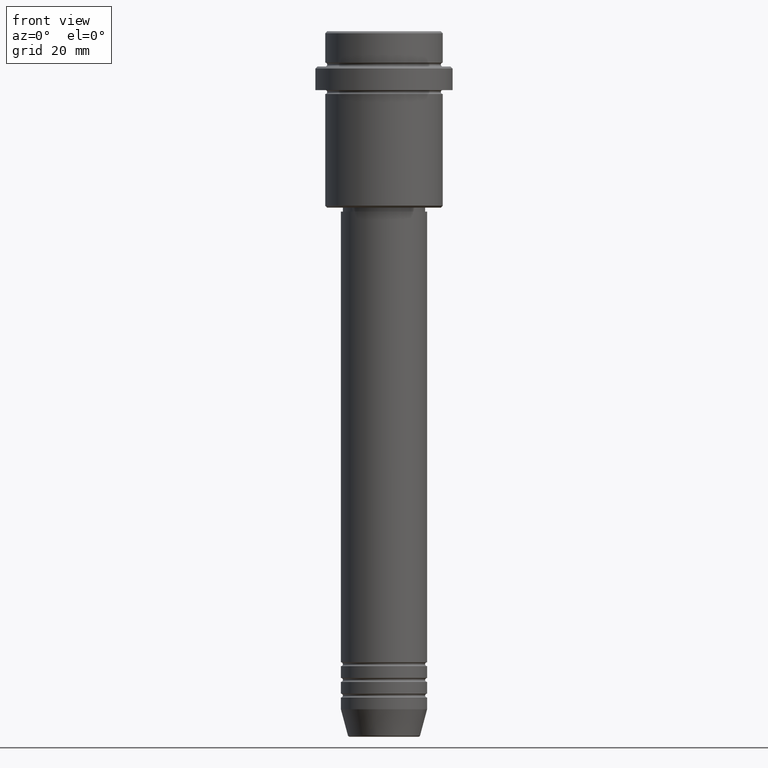
[diagram: clean part render]
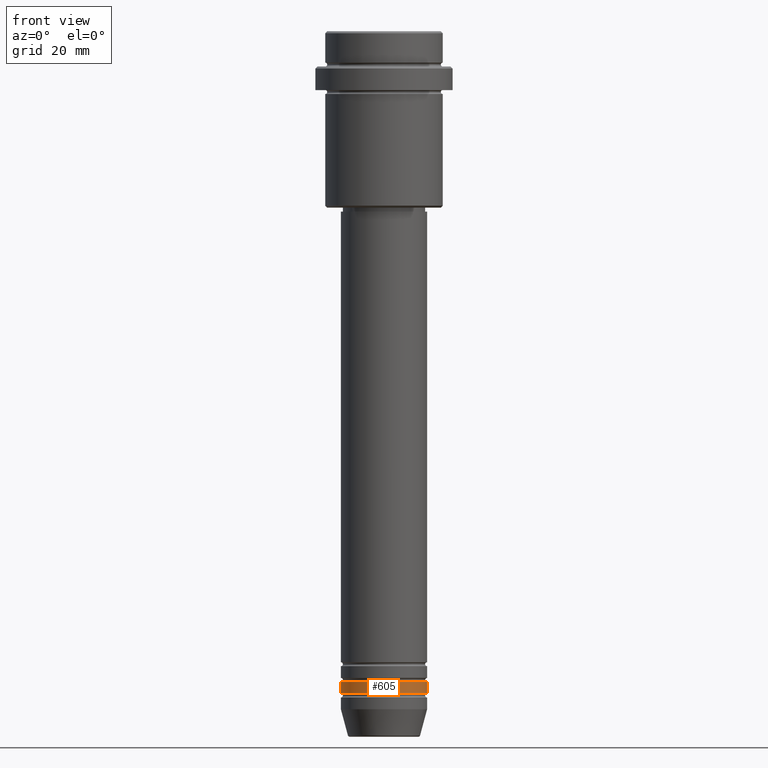
[diagram: same view with one face highlighted and labeled with its STEP entity id]
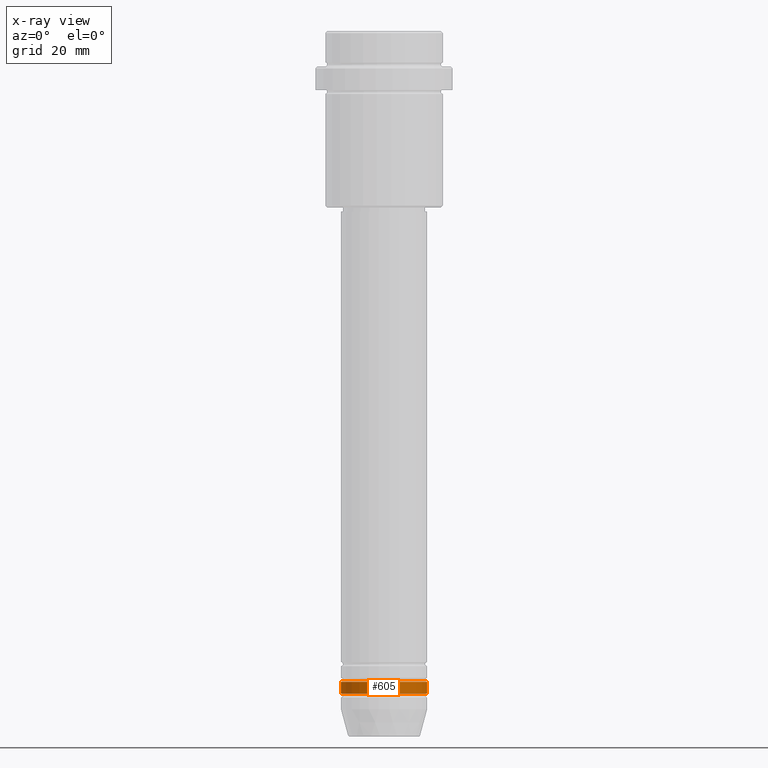
[diagram: x-ray of the same camera — body ghosted, the highlighted face saturated]
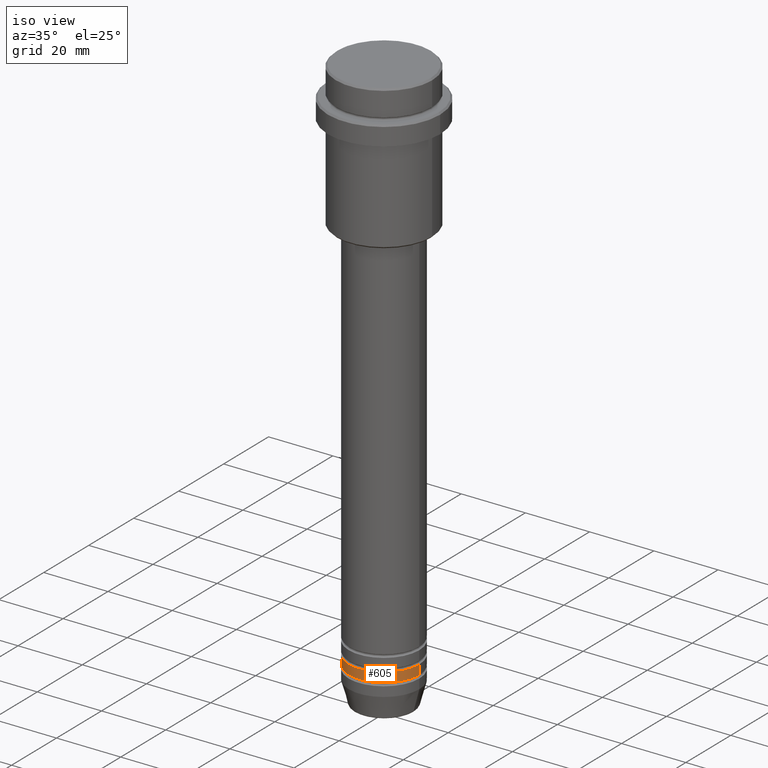
[diagram: same view with one face highlighted and labeled with its STEP entity id]
A machine part, front view. The second image highlights one B-rep face of the part: STEP entity #605.
The next image is the same camera in x-ray: the body ghosted, the highlighted face saturated — about 0% of this face is hidden behind the body in this view.
A second angle (iso view) of the same face is appended — the face is thin or edge-on in the first view.
In plain terms, the highlighted cylindrical surface (partial cylindrical patch) has radius 11 mm, axis along (-0, -0, 1).
Its self-contained STEP definition (entity closure, byte-faithful):
#40 = ORIENTED_EDGE ( 'NONE', *, *, #348, .T. ) ;
#55 = EDGE_LOOP ( 'NONE', ( #217, #399, #40, #154 ) ) ;
#56 = FACE_OUTER_BOUND ( 'NONE', #55, .T. ) ;
#63 = DIRECTION ( 'NONE',  ( 1.000000000000000000, 0.000000000000000000, 0.000000000000000000 ) ) ;
#91 = CARTESIAN_POINT ( 'NONE',  ( -11.00000000000000000, 1.347111479062088405E-15, 0.000000000000000000 ) ) ;
#132 = VERTEX_POINT ( 'NONE', #1259 ) ;
#154 = ORIENTED_EDGE ( 'NONE', *, *, #941, .F. ) ;
#179 = CYLINDRICAL_SURFACE ( 'NONE', #1068, 11.00000000000000000 ) ;
#217 = ORIENTED_EDGE ( 'NONE', *, *, #860, .F. ) ;
#318 = VECTOR ( 'NONE', #969, 1000.000000000000000 ) ;
#321 = VERTEX_POINT ( 'NONE', #899 ) ;
#329 = DIRECTION ( 'NONE',  ( 1.000000000000000000, 0.000000000000000000, 0.000000000000000000 ) ) ;
#344 = AXIS2_PLACEMENT_3D ( 'NONE', #894, #1116, #1009 ) ;
#348 = EDGE_CURVE ( 'NONE', #1065, #321, #486, .T. ) ;
#391 = VERTEX_POINT ( 'NONE', #1145 ) ;
#399 = ORIENTED_EDGE ( 'NONE', *, *, #1344, .T. ) ;
#486 = LINE ( 'NONE', #1251, #604 ) ;
#535 = LINE ( 'NONE', #91, #318 ) ;
#575 = CARTESIAN_POINT ( 'NONE',  ( 0.000000000000000000, 0.000000000000000000, -165.9999999999999147 ) ) ;
#604 = VECTOR ( 'NONE', #791, 1000.000000000000000 ) ;
#605 = ADVANCED_FACE ( 'NONE', ( #56 ), #179, .T. ) ;
#608 = CARTESIAN_POINT ( 'NONE',  ( 0.000000000000000000, 0.000000000000000000, 0.000000000000000000 ) ) ;
#777 = DIRECTION ( 'NONE',  ( -0.000000000000000000, -0.000000000000000000, 1.000000000000000000 ) ) ;
#779 = CARTESIAN_POINT ( 'NONE',  ( 11.00000000000000000, 0.000000000000000000, -168.9999999999999147 ) ) ;
#791 = DIRECTION ( 'NONE',  ( -0.000000000000000000, -0.000000000000000000, 1.000000000000000000 ) ) ;
#795 = CIRCLE ( 'NONE', #863, 11.00000000000000000 ) ;
#860 = EDGE_CURVE ( 'NONE', #391, #132, #535, .T. ) ;
#863 = AXIS2_PLACEMENT_3D ( 'NONE', #575, #777, #329 ) ;
#894 = CARTESIAN_POINT ( 'NONE',  ( 0.000000000000000000, 0.000000000000000000, -168.9999999999999147 ) ) ;
#899 = CARTESIAN_POINT ( 'NONE',  ( 11.00000000000000000, 0.000000000000000000, -165.9999999999999147 ) ) ;
#941 = EDGE_CURVE ( 'NONE', #132, #321, #795, .T. ) ;
#969 = DIRECTION ( 'NONE',  ( -0.000000000000000000, -0.000000000000000000, 1.000000000000000000 ) ) ;
#1009 = DIRECTION ( 'NONE',  ( 1.000000000000000000, 0.000000000000000000, 0.000000000000000000 ) ) ;
#1056 = DIRECTION ( 'NONE',  ( -0.000000000000000000, -0.000000000000000000, 1.000000000000000000 ) ) ;
#1065 = VERTEX_POINT ( 'NONE', #779 ) ;
#1068 = AXIS2_PLACEMENT_3D ( 'NONE', #608, #1056, #63 ) ;
#1116 = DIRECTION ( 'NONE',  ( -0.000000000000000000, -0.000000000000000000, 1.000000000000000000 ) ) ;
#1145 = CARTESIAN_POINT ( 'NONE',  ( -11.00000000000000000, 1.347111479062088405E-15, -168.9999999999999147 ) ) ;
#1251 = CARTESIAN_POINT ( 'NONE',  ( 11.00000000000000000, 0.000000000000000000, 0.000000000000000000 ) ) ;
#1259 = CARTESIAN_POINT ( 'NONE',  ( -11.00000000000000000, 1.347111479062088405E-15, -165.9999999999999147 ) ) ;
#1344 = EDGE_CURVE ( 'NONE', #391, #1065, #1350, .T. ) ;
#1350 = CIRCLE ( 'NONE', #344, 11.00000000000000000 ) ;